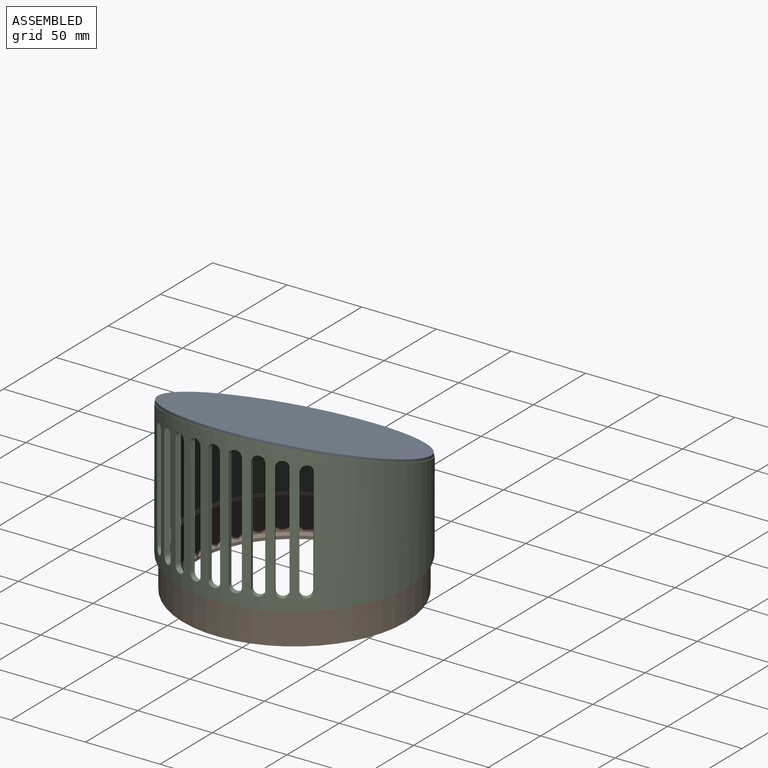
[diagram: assembled view]
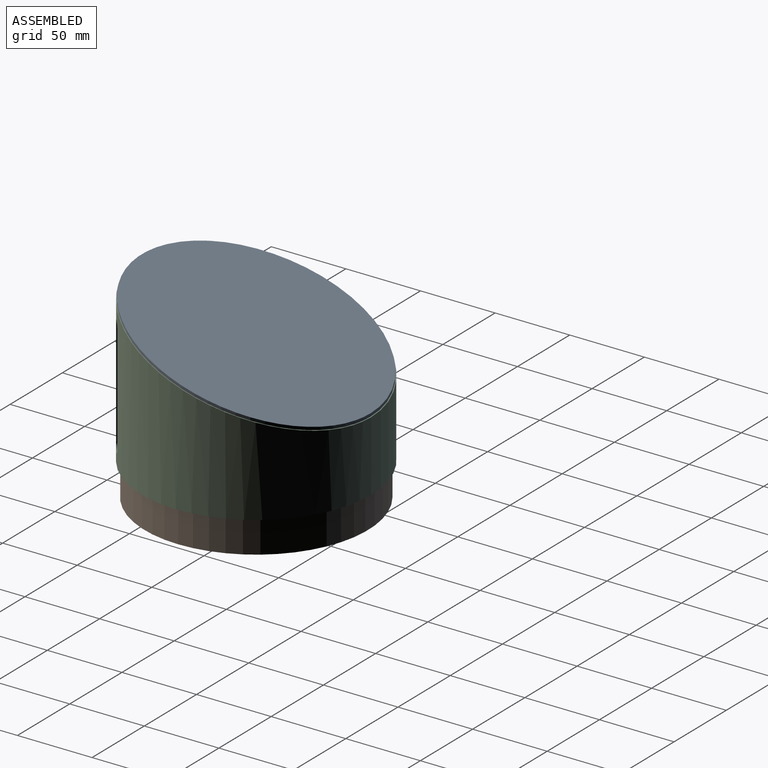
[diagram: assembled view, second angle]
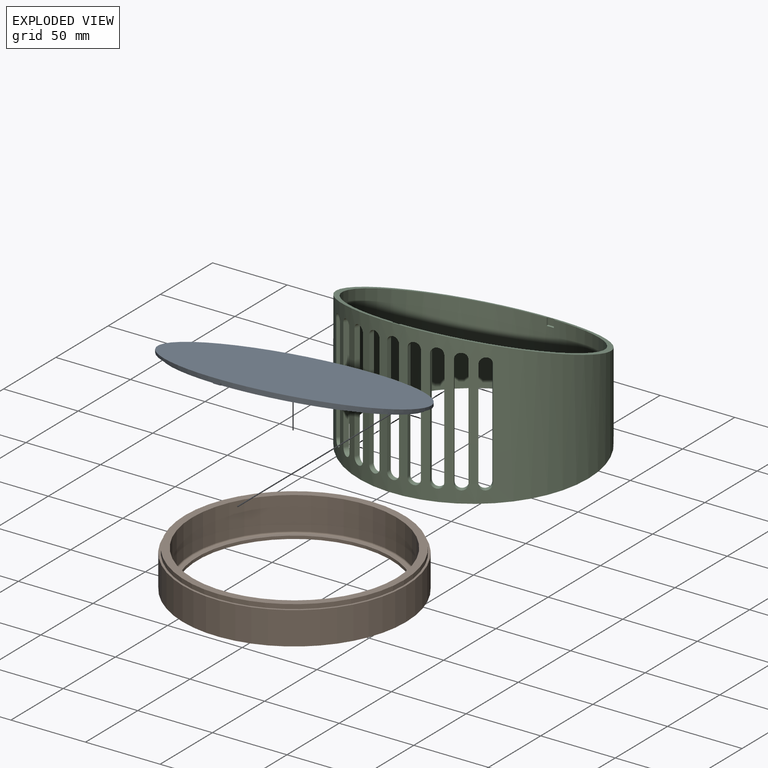
[diagram: exploded view]
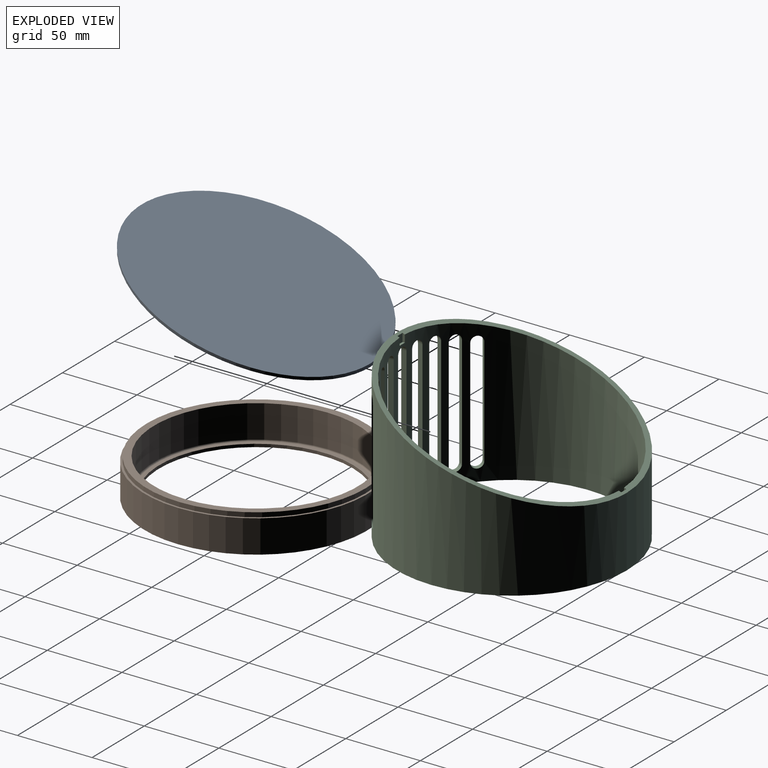
[diagram: exploded view, second angle]
ASSEMBLY  parts=3 mates=2
PART A: 22 faces, bbox 293x153x59.4 mm
  f0: bspline ~146.59x146.5mm, area 450.8mm2, adj f1,f5,f10,f11
  f1: plane 153x153mm, normal (0,-0.34,-0.94), area 1602.3mm2, adj f0,f3,f6,f8,f9,f10,f11,f12
  f2: plane 153x153mm, normal (0,0.34,0.94), area 19565.3mm2, adj f3
  f3: cylinder r=76.5mm len=153mm, axis (0,0,1), area 961.3mm2, adj f1,f2
  f4: bspline ~142.84x142.5mm, area 896.5mm2, adj f5,f7
  f5: plane 149.22x146.5mm, normal (0,-0.34,-0.94), area 950.7mm2, adj f0,f4,f6,f8,f9,f10,f11,f12
  f6: bspline ~146.59x146.5mm, area 450.8mm2, adj f1,f5,f8,f13
  f7: plane 142.84x142.5mm, normal (0,-0.34,-0.94), area 17011.1mm2, adj f4,f14,f15,f16,f17,f18,f19,f20
  f8: plane 2.49x1.36mm, normal (1,0,0), area 2.7mm2, adj f1,f5,f6,f9
  f9: plane 4.8x2mm, normal (0,1,0), area 9.6mm2, adj f1,f5,f8,f10
  f10: plane 2.49x1.36mm, normal (-1,0,0), area 2.7mm2, adj f0,f1,f5,f9
  f11: plane 2.49x1.36mm, normal (-1,0,0), area 2.7mm2, adj f0,f1,f5,f12
  f12: plane 4.8x2mm, normal (0,-1,0), area 9.6mm2, adj f1,f5,f11,f13
  f13: plane 2.49x1.36mm, normal (1,0,0), area 2.7mm2, adj f1,f5,f6,f12
  f14: plane 2.33x1.66mm, normal (-0.9,-0.4,0.15), area 2.3mm2, adj f7,f15,f20,f21
  f15: plane 0.94x0.35mm, normal (0,0.94,-0.34), area 0.3mm2, adj f7,f14,f16,f21
  f16: plane 1.95x1.53mm, normal (0.91,0.38,-0.14), area 1.9mm2, adj f7,f15,f17,f21
  f17: plane 1.95x1.53mm, normal (-0.89,0.42,-0.15), area 1.9mm2, adj f7,f16,f18,f21
  f18: plane 0.94x0.35mm, normal (0,0.94,-0.34), area 0.3mm2, adj f7,f17,f19,f21
  f19: plane 2.33x1.66mm, normal (0.89,-0.43,0.16), area 2.4mm2, adj f7,f18,f20,f21
  f20: plane 0.94x0.34mm, normal (0,-0.94,0.34), area 0.2mm2, adj f7,f14,f19,f21
  f21: plane 2.32x1.99mm, normal (0,-0.34,-0.94), area 1.3mm2, adj f14,f15,f16,f17,f18,f19,f20
PART B: 9 faces, bbox 149.6x149.6x25 mm
  f0: plane 135x135mm, normal (0,0,1), area 1040.7mm2, adj f1,f8
  f1: cylinder r=65mm len=130mm, axis (0,0,-1), area 816.8mm2, adj f0,f3
  f2: cylinder r=74.8mm len=149.6mm, axis (0,0,-1), area 10339.6mm2, adj f3,f5
  f3: plane 149.6x149.6mm, normal (0,0,-1), area 4304.1mm2, adj f1,f2
  f4: cylinder r=68.5mm len=137mm, axis (0,0,-1), area 9468.8mm2, adj f7,f8
  f5: plane 149.6x149.6mm, normal (0,0,1), area 651.8mm2, adj f2,f6
  f6: cylinder r=73.4mm len=146.8mm, axis (0,0,-1), area 1383.6mm2, adj f5,f7
  f7: plane 146.8x146.8mm, normal (0,0,1), area 2184.4mm2, adj f4,f6
  f8: torus R=67.5mm, axis (0,0,1), area 672.5mm2, adj f0,f4
PART C: 48 faces, bbox 154x154x103.4 mm
  f0: cylinder r=73.5mm len=147mm, axis (0,0,-1), area 28639.8mm2, adj f2,f3,f4,f6,f7,f9,f10,f11
  f1: cylinder r=77mm len=154mm, axis (0,0,-1), area 30339.2mm2, adj f2,f3,f12,f13,f14,f15,f16,f17
  f2: plane 154x154mm, normal (0,0,-1), area 1654.8mm2, adj f0,f1
  f3: plane 154x154mm, normal (0,0.34,0.94), area 1744.9mm2, adj f0,f1,f4,f5,f6,f8,f9,f10
  f4: plane 5.55x1.54mm, normal (1,0,0), area 8.1mm2, adj f0,f3,f5,f7
  f5: plane 5.55x5mm, normal (0,1,0), area 27.7mm2, adj f3,f4,f6,f7
  f6: plane 5.55x1.54mm, normal (-1,0,0), area 8.1mm2, adj f0,f3,f5,f7
  f7: plane 5x1.54mm, normal (0,0,1), area 7.6mm2, adj f0,f4,f5,f6
  f8: plane 5x4.45mm, normal (0,-1,0), area 22.3mm2, adj f3,f9,f10,f11
  f9: plane 5.02x1.54mm, normal (1,0,0), area 7.3mm2, adj f0,f3,f8,f11
  f10: plane 5.02x1.54mm, normal (-1,0,0), area 7.3mm2, adj f0,f3,f8,f11
  f11: plane 5x1.54mm, normal (0,0,1), area 7.6mm2, adj f0,f8,f9,f10
  f12: plane 79.03x3.51mm, normal (-1,0,0), area 277mm2, adj f0,f1,f30,f31
  f13: plane 79.03x3.51mm, normal (1,0,0), area 277mm2, adj f0,f1,f30,f31
  f14: plane 78.6x3.45mm, normal (-0.98,0.17,0), area 275.5mm2, adj f0,f1,f28,f29
  f15: plane 78.6x3.45mm, normal (0.98,-0.17,0), area 275.5mm2, adj f0,f1,f28,f29
  f16: plane 77.34x3.29mm, normal (-0.94,0.34,0), area 271.1mm2, adj f0,f1,f26,f27
  f17: plane 77.34x3.29mm, normal (0.94,-0.34,0), area 271.1mm2, adj f0,f1,f26,f27
  f18: plane 75.27x3.04mm, normal (-0.87,0.5,0), area 263.8mm2, adj f0,f1,f24,f25
  f19: plane 75.27x3.04mm, normal (0.87,-0.5,0), area 263.8mm2, adj f0,f1,f24,f25
  f20: plane 72.47x2.69mm, normal (-0.77,0.64,0), area 254mm2, adj f0,f1,f22,f23
  f21: plane 72.47x2.69mm, normal (0.77,-0.64,0), area 254mm2, adj f0,f1,f22,f23
  f22: cylinder r=4mm len=8.45mm, axis (-0.64,-0.77,0), area 44mm2, adj f0,f1,f20,f21
  f23: cylinder r=4mm len=8.45mm, axis (-0.64,-0.77,0), area 44mm2, adj f0,f1,f20,f21
  f24: cylinder r=4mm len=8.73mm, axis (-0.5,-0.87,0), area 44mm2, adj f0,f1,f18,f19
  f25: cylinder r=4mm len=8.73mm, axis (-0.5,-0.87,0), area 44mm2, adj f0,f1,f18,f19
  f26: cylinder r=4mm len=8.75mm, axis (-0.34,-0.94,0), area 44mm2, adj f0,f1,f16,f17
  f27: cylinder r=4mm len=8.75mm, axis (-0.34,-0.94,0), area 44mm2, adj f0,f1,f16,f17
  f28: cylinder r=4mm len=8.51mm, axis (-0.17,-0.98,0), area 44mm2, adj f0,f1,f14,f15
  f29: cylinder r=4mm len=8.51mm, axis (-0.17,-0.98,0), area 44mm2, adj f0,f1,f14,f15
  f30: cylinder r=4mm len=8mm, axis (0,-1,0), area 44mm2, adj f0,f1,f12,f13
  f31: cylinder r=4mm len=8mm, axis (0,-1,0), area 44mm2, adj f0,f1,f12,f13
  f32: plane 78.6x3.45mm, normal (0.98,0.17,0), area 275.5mm2, adj f0,f1,f46,f47
  f33: plane 78.6x3.45mm, normal (-0.98,-0.17,0), area 275.5mm2, adj f0,f1,f46,f47
  f34: plane 77.34x3.29mm, normal (0.94,0.34,0), area 271.1mm2, adj f0,f1,f44,f45
  f35: plane 77.34x3.29mm, normal (-0.94,-0.34,0), area 271.1mm2, adj f0,f1,f44,f45
  f36: plane 75.27x3.04mm, normal (0.87,0.5,0), area 263.8mm2, adj f0,f1,f42,f43
  f37: plane 75.27x3.04mm, normal (-0.87,-0.5,0), area 263.8mm2, adj f0,f1,f42,f43
  f38: plane 72.47x2.69mm, normal (0.77,0.64,0), area 254mm2, adj f0,f1,f40,f41
  f39: plane 72.47x2.69mm, normal (-0.77,-0.64,0), area 254mm2, adj f0,f1,f40,f41
  f40: cylinder r=4mm len=8.45mm, axis (0.64,-0.77,0), area 44mm2, adj f0,f1,f38,f39
  f41: cylinder r=4mm len=8.45mm, axis (0.64,-0.77,0), area 44mm2, adj f0,f1,f38,f39
  f42: cylinder r=4mm len=8.73mm, axis (0.5,-0.87,0), area 44mm2, adj f0,f1,f36,f37
  f43: cylinder r=4mm len=8.73mm, axis (0.5,-0.87,0), area 44mm2, adj f0,f1,f36,f37
  f44: cylinder r=4mm len=8.75mm, axis (0.34,-0.94,0), area 44mm2, adj f0,f1,f34,f35
  f45: cylinder r=4mm len=8.75mm, axis (0.34,-0.94,0), area 44mm2, adj f0,f1,f34,f35
  f46: cylinder r=4mm len=8.51mm, axis (0.17,-0.98,0), area 44mm2, adj f0,f1,f32,f33
  f47: cylinder r=4mm len=8.51mm, axis (0.17,-0.98,0), area 44mm2, adj f0,f1,f32,f33
PLACE A t=(0,-1.61,22.58)mm
PLACE B at identity fixed
PLACE C t=(0,0,22)mm
MATE fastened A.f7 <-> C.f3  axis (0,-0.34,-0.94) through (0,0,97)mm
MATE fastened B.f6 <-> C.f0  axis (0,0,1) through (0,0,22)mm
